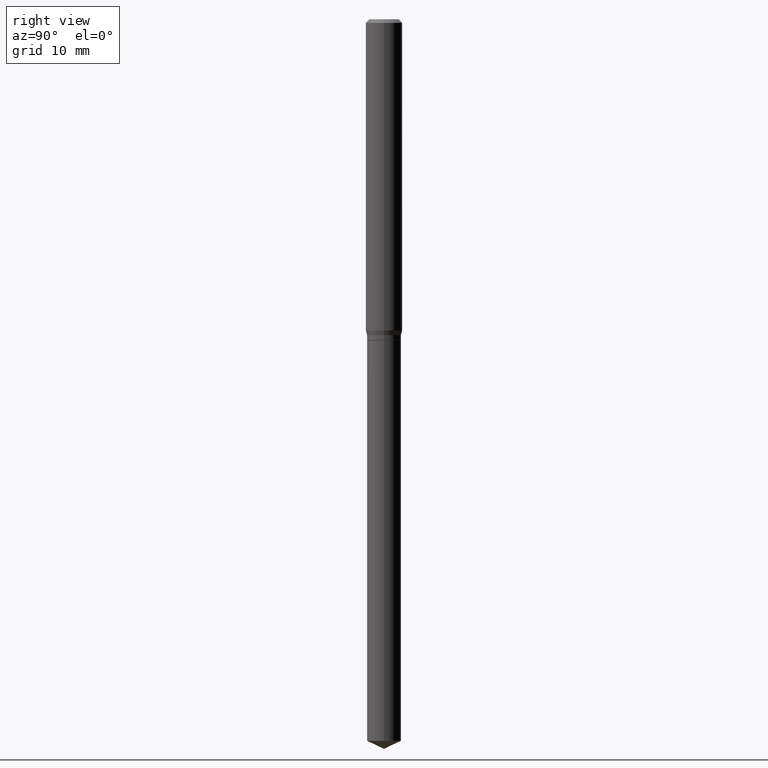
[diagram: clean part render]
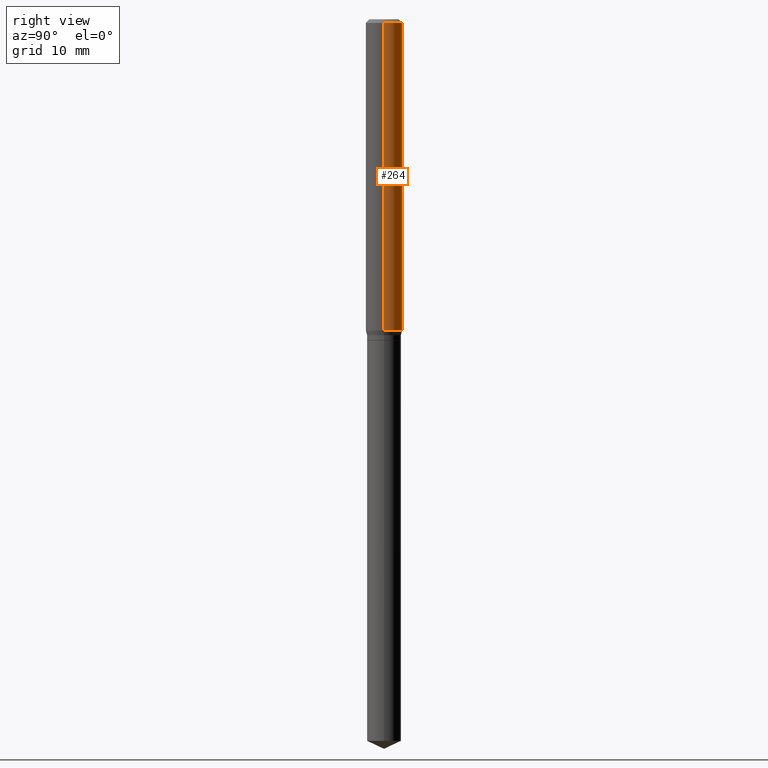
[diagram: same view with one face highlighted and labeled with its STEP entity id]
A machine part, right view. The second image highlights one B-rep face of the part: STEP entity #264.
In plain terms, the highlighted cylindrical surface (edge-blend (fillet) strip) has radius 1.4999 mm, axis along (-0, 0, 1).
Its self-contained STEP definition (entity closure, byte-faithful):
#5 = CARTESIAN_POINT ( 'NONE',  ( 0.05905000000000011628, -3.931611887638806444E-15, -1.007958399310102893 ) ) ;
#20 = LINE ( 'NONE', #463, #199 ) ;
#33 = CARTESIAN_POINT ( 'NONE',  ( 0.000000000000000000, 0.000000000000000000, 0.000000000000000000 ) ) ;
#36 = DIRECTION ( 'NONE',  ( -2.445468806185136597E-29, 3.491481338843145583E-15, 1.000000000000000000 ) ) ;
#49 = ORIENTED_EDGE ( 'NONE', *, *, #483, .T. ) ;
#66 = EDGE_LOOP ( 'NONE', ( #49, #169, #327, #101 ) ) ;
#74 = DIRECTION ( 'NONE',  ( -2.445468806185136877E-29, 3.491481338843145188E-15, 1.000000000000000000 ) ) ;
#101 = ORIENTED_EDGE ( 'NONE', *, *, #413, .F. ) ;
#111 = EDGE_CURVE ( 'NONE', #115, #489, #196, .T. ) ;
#115 = VERTEX_POINT ( 'NONE', #204 ) ;
#125 = AXIS2_PLACEMENT_3D ( 'NONE', #421, #36, #360 ) ;
#126 = CARTESIAN_POINT ( 'NONE',  ( -0.05904999999999999832, -1.360675682600244344E-15, -0.01181000000000007044 ) ) ;
#165 = DIRECTION ( 'NONE',  ( -2.445468806185136597E-29, 3.491481338843145583E-15, 1.000000000000000000 ) ) ;
#169 = ORIENTED_EDGE ( 'NONE', *, *, #429, .T. ) ;
#177 = LINE ( 'NONE', #477, #423 ) ;
#189 = CIRCLE ( 'NONE', #455, 0.05905000000000011628 ) ;
#196 = CIRCLE ( 'NONE', #125, 0.05904999999999999832 ) ;
#197 = CYLINDRICAL_SURFACE ( 'NONE', #439, 0.05905000000000006077 ) ;
#199 = VECTOR ( 'NONE', #74, 39.37007874015748143 ) ;
#200 = DIRECTION ( 'NONE',  ( 1.000000000000000000, -6.982962677686266711E-15, 4.876176775795935793E-29 ) ) ;
#204 = CARTESIAN_POINT ( 'NONE',  ( 0.05904999999999999832, -4.535783407291118600E-16, -0.01181000000000007044 ) ) ;
#218 = CARTESIAN_POINT ( 'NONE',  ( -0.05905000000000011628, -3.099692456055091636E-15, -1.007958399310102893 ) ) ;
#264 = ADVANCED_FACE ( 'NONE', ( #419 ), #197, .T. ) ;
#309 = VERTEX_POINT ( 'NONE', #218 ) ;
#327 = ORIENTED_EDGE ( 'NONE', *, *, #111, .F. ) ;
#348 = DIRECTION ( 'NONE',  ( -2.445468806185136597E-29, 3.491481338843145583E-15, 1.000000000000000000 ) ) ;
#350 = VERTEX_POINT ( 'NONE', #5 ) ;
#360 = DIRECTION ( 'NONE',  ( 1.000000000000000000, -6.982962677686266711E-15, 0.000000000000000000 ) ) ;
#371 = DIRECTION ( 'NONE',  ( -2.445468806185136877E-29, 3.491481338843145188E-15, 1.000000000000000000 ) ) ;
#413 = EDGE_CURVE ( 'NONE', #350, #115, #177, .T. ) ;
#419 = FACE_OUTER_BOUND ( 'NONE', #66, .T. ) ;
#421 = CARTESIAN_POINT ( 'NONE',  ( 2.888098660104663766E-31, -4.123439461173779647E-17, -0.01181000000000007044 ) ) ;
#423 = VECTOR ( 'NONE', #371, 39.37007874015748143 ) ;
#429 = EDGE_CURVE ( 'NONE', #309, #489, #20, .T. ) ;
#439 = AXIS2_PLACEMENT_3D ( 'NONE', #33, #348, #200 ) ;
#449 = DIRECTION ( 'NONE',  ( 1.000000000000000000, -6.982962677686266711E-15, 0.000000000000000000 ) ) ;
#455 = AXIS2_PLACEMENT_3D ( 'NONE', #457, #165, #449 ) ;
#457 = CARTESIAN_POINT ( 'NONE',  ( 2.464930823445158340E-29, -3.519267941521431524E-15, -1.007958399310102893 ) ) ;
#463 = CARTESIAN_POINT ( 'NONE',  ( -0.05905000000000006077, 4.195754854663395916E-16, -2.904631170795524694E-30 ) ) ;
#477 = CARTESIAN_POINT ( 'NONE',  ( 0.05905000000000006077, -4.123439461173744764E-16, 2.879382386107503023E-30 ) ) ;
#483 = EDGE_CURVE ( 'NONE', #350, #309, #189, .T. ) ;
#489 = VERTEX_POINT ( 'NONE', #126 ) ;